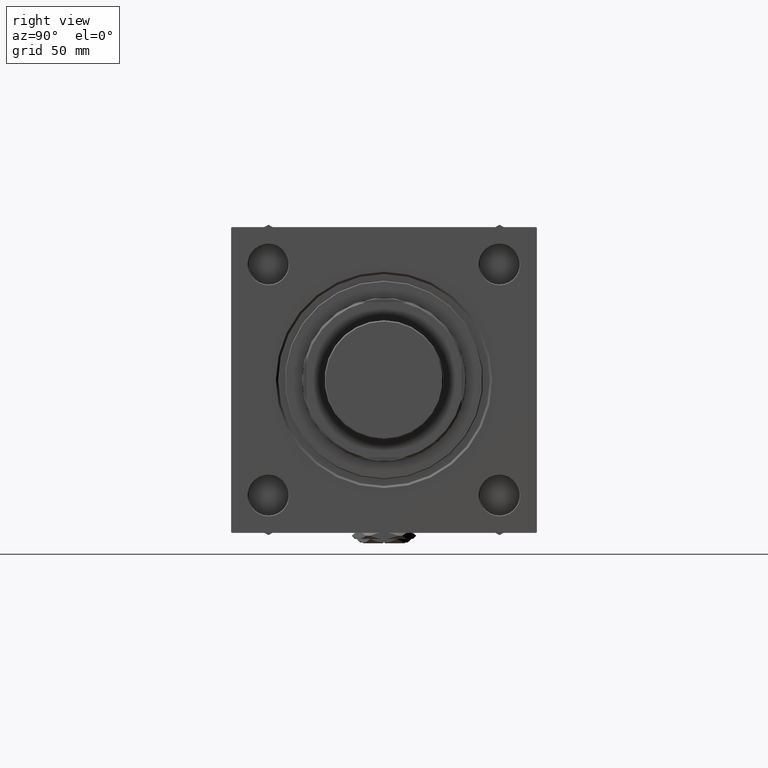
[diagram: clean part render]
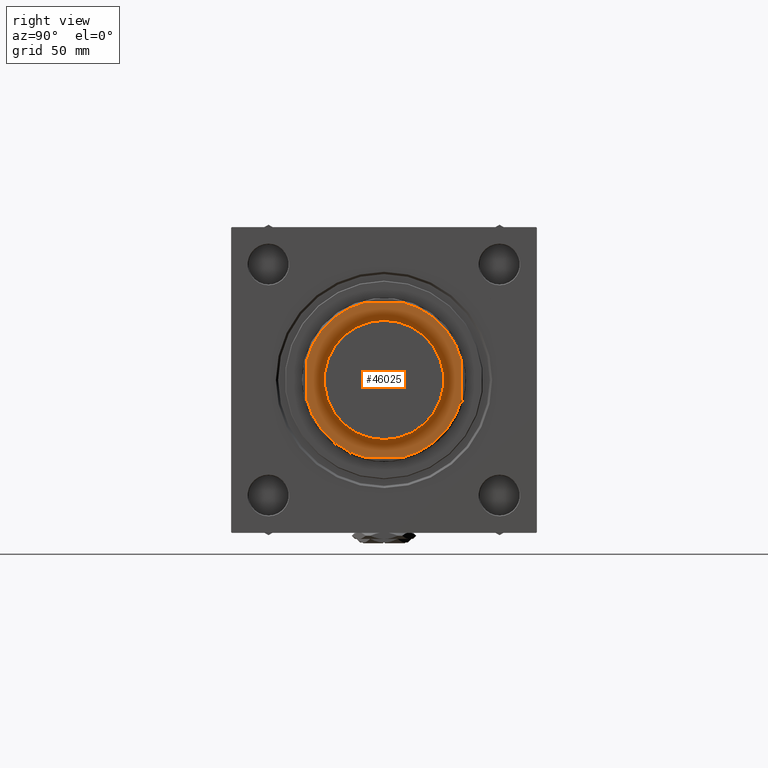
[diagram: same view with one face highlighted and labeled with its STEP entity id]
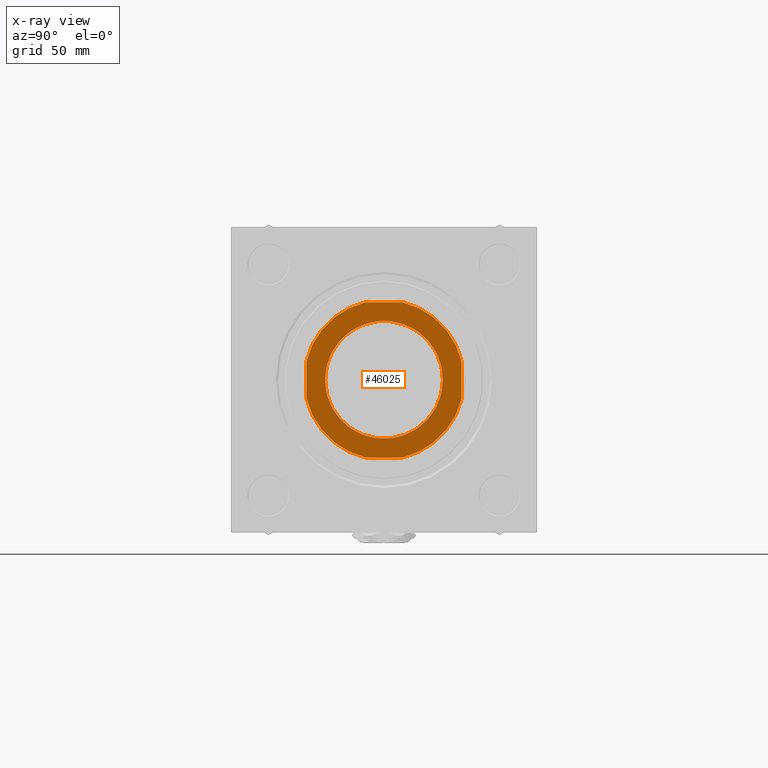
[diagram: x-ray of the same camera — body ghosted, the highlighted face saturated]
A machine part, right view. The second image highlights one B-rep face of the part: STEP entity #46025.
The next image is the same camera in x-ray: the body ghosted, the highlighted face saturated — about 3% of this face is hidden behind the body in this view.
In plain terms, the highlighted planar face has unit normal (1, 0, 0).
Its self-contained STEP definition (entity closure, byte-faithful):
#2100 = VERTEX_POINT ( 'NONE', #16071 ) ;
#2308 = AXIS2_PLACEMENT_3D ( 'NONE', #19683, #41161, #40353 ) ;
#2430 = FACE_BOUND ( 'NONE', #12267, .T. ) ;
#2502 = VERTEX_POINT ( 'NONE', #24813 ) ;
#3173 = EDGE_CURVE ( 'NONE', #2502, #44145, #48054, .T. ) ;
#3453 = DIRECTION ( 'NONE',  ( -0.000000000000000000, 0.000000000000000000, 1.000000000000000000 ) ) ;
#4022 = ORIENTED_EDGE ( 'NONE', *, *, #3173, .T. ) ;
#4897 = EDGE_CURVE ( 'NONE', #8964, #2502, #34093, .T. ) ;
#7614 = DIRECTION ( 'NONE',  ( -0.000000000000000000, 1.000000000000000000, -0.000000000000000000 ) ) ;
#8001 = DIRECTION ( 'NONE',  ( 1.000000000000000000, 0.000000000000000000, 0.000000000000000000 ) ) ;
#8099 = CARTESIAN_POINT ( 'NONE',  ( 0.000000000000000000, 0.000000000000000000, 205.0000000000000000 ) ) ;
#8220 = EDGE_CURVE ( 'NONE', #22317, #10214, #39679, .T. ) ;
#8964 = VERTEX_POINT ( 'NONE', #10481 ) ;
#9874 = LINE ( 'NONE', #34236, #36092 ) ;
#10057 = CIRCLE ( 'NONE', #39994, 53.49999999999991473 ) ;
#10214 = VERTEX_POINT ( 'NONE', #42863 ) ;
#10481 = CARTESIAN_POINT ( 'NONE',  ( 12.57974562540872832, 52.00000000000001421, 205.0000000000000000 ) ) ;
#11234 = ORIENTED_EDGE ( 'NONE', *, *, #31608, .T. ) ;
#11484 = CARTESIAN_POINT ( 'NONE',  ( 0.000000000000000000, 0.000000000000000000, 205.0000000000000000 ) ) ;
#12267 = EDGE_LOOP ( 'NONE', ( #19461, #20899 ) ) ;
#12417 = CARTESIAN_POINT ( 'NONE',  ( 39.54999999999997584, 0.000000000000000000, 205.0000000000000000 ) ) ;
#12799 = AXIS2_PLACEMENT_3D ( 'NONE', #25163, #37247, #17662 ) ;
#13941 = FACE_OUTER_BOUND ( 'NONE', #31129, .T. ) ;
#14020 = DIRECTION ( 'NONE',  ( -0.000000000000000000, 0.000000000000000000, 1.000000000000000000 ) ) ;
#14344 = ORIENTED_EDGE ( 'NONE', *, *, #50440, .T. ) ;
#14507 = CARTESIAN_POINT ( 'NONE',  ( -51.99999999999998579, -12.57974562540868213, 205.0000000000000000 ) ) ;
#14565 = CARTESIAN_POINT ( 'NONE',  ( -12.57974562540865904, -51.99999999999999289, 205.0000000000000000 ) ) ;
#15340 = CARTESIAN_POINT ( 'NONE',  ( -51.99999999999997868, -51.99999999999999289, 205.0000000000000000 ) ) ;
#15564 = EDGE_CURVE ( 'NONE', #29242, #30670, #43756, .T. ) ;
#16071 = CARTESIAN_POINT ( 'NONE',  ( 52.00000000000001421, -12.57974562540856844, 205.0000000000000000 ) ) ;
#17662 = DIRECTION ( 'NONE',  ( 1.000000000000000000, 0.000000000000000000, 0.000000000000000000 ) ) ;
#17904 = VERTEX_POINT ( 'NONE', #20924 ) ;
#17940 = ORIENTED_EDGE ( 'NONE', *, *, #30253, .T. ) ;
#17973 = AXIS2_PLACEMENT_3D ( 'NONE', #25980, #51712, #38589 ) ;
#19461 = ORIENTED_EDGE ( 'NONE', *, *, #8220, .T. ) ;
#19683 = CARTESIAN_POINT ( 'NONE',  ( 0.000000000000000000, 0.000000000000000000, 205.0000000000000000 ) ) ;
#20899 = ORIENTED_EDGE ( 'NONE', *, *, #36567, .T. ) ;
#20924 = CARTESIAN_POINT ( 'NONE',  ( 52.00000000000001421, 12.57974562540872654, 205.0000000000000000 ) ) ;
#22268 = CARTESIAN_POINT ( 'NONE',  ( -51.99999999999999289, 52.00000000000001421, 205.0000000000000000 ) ) ;
#22317 = VERTEX_POINT ( 'NONE', #12417 ) ;
#23212 = CIRCLE ( 'NONE', #48933, 53.49999999999987921 ) ;
#23698 = VECTOR ( 'NONE', #7614, 1000.000000000000000 ) ;
#24813 = CARTESIAN_POINT ( 'NONE',  ( -12.57974562540890062, 52.00000000000001421, 205.0000000000000000 ) ) ;
#25163 = CARTESIAN_POINT ( 'NONE',  ( 0.000000000000000000, 0.000000000000000000, 205.0000000000000000 ) ) ;
#25525 = DIRECTION ( 'NONE',  ( 1.000000000000000000, 0.000000000000000000, 0.000000000000000000 ) ) ;
#25980 = CARTESIAN_POINT ( 'NONE',  ( 0.000000000000000000, 0.000000000000000000, 205.0000000000000000 ) ) ;
#26659 = VECTOR ( 'NONE', #50457, 1000.000000000000000 ) ;
#28199 = CIRCLE ( 'NONE', #12799, 39.54999999999997584 ) ;
#29242 = VERTEX_POINT ( 'NONE', #14565 ) ;
#30253 = EDGE_CURVE ( 'NONE', #37321, #29242, #32223, .T. ) ;
#30670 = VERTEX_POINT ( 'NONE', #49407 ) ;
#30799 = PLANE ( 'NONE',  #17973 ) ;
#31129 = EDGE_LOOP ( 'NONE', ( #11234, #43806, #48157, #4022, #14344, #17940, #50831, #49038 ) ) ;
#31608 = EDGE_CURVE ( 'NONE', #2100, #17904, #36818, .T. ) ;
#31922 = DIRECTION ( 'NONE',  ( 1.000000000000000000, 0.000000000000000000, 0.000000000000000000 ) ) ;
#31991 = EDGE_CURVE ( 'NONE', #17904, #8964, #10057, .T. ) ;
#32223 = CIRCLE ( 'NONE', #2308, 53.49999999999987921 ) ;
#34093 = LINE ( 'NONE', #22268, #26659 ) ;
#34236 = CARTESIAN_POINT ( 'NONE',  ( -51.99999999999999289, 52.00000000000001421, 205.0000000000000000 ) ) ;
#34549 = AXIS2_PLACEMENT_3D ( 'NONE', #36384, #43899, #52464 ) ;
#36038 = AXIS2_PLACEMENT_3D ( 'NONE', #11484, #3453, #8001 ) ;
#36092 = VECTOR ( 'NONE', #50598, 1000.000000000000000 ) ;
#36384 = CARTESIAN_POINT ( 'NONE',  ( 0.000000000000000000, 0.000000000000000000, 205.0000000000000000 ) ) ;
#36567 = EDGE_CURVE ( 'NONE', #10214, #22317, #28199, .T. ) ;
#36818 = LINE ( 'NONE', #44328, #23698 ) ;
#37247 = DIRECTION ( 'NONE',  ( 0.000000000000000000, -0.000000000000000000, -1.000000000000000000 ) ) ;
#37321 = VERTEX_POINT ( 'NONE', #14507 ) ;
#38589 = DIRECTION ( 'NONE',  ( 1.000000000000000000, 0.000000000000000000, 0.000000000000000000 ) ) ;
#38706 = VECTOR ( 'NONE', #39209, 1000.000000000000000 ) ;
#39209 = DIRECTION ( 'NONE',  ( 1.000000000000000000, 0.000000000000000000, 0.000000000000000000 ) ) ;
#39679 = CIRCLE ( 'NONE', #34549, 39.54999999999997584 ) ;
#39994 = AXIS2_PLACEMENT_3D ( 'NONE', #8099, #52297, #31922 ) ;
#40039 = CARTESIAN_POINT ( 'NONE',  ( -51.99999999999998579, 12.57974562540899832, 205.0000000000000000 ) ) ;
#40353 = DIRECTION ( 'NONE',  ( 1.000000000000000000, 0.000000000000000000, 0.000000000000000000 ) ) ;
#41161 = DIRECTION ( 'NONE',  ( -0.000000000000000000, 0.000000000000000000, 1.000000000000000000 ) ) ;
#42863 = CARTESIAN_POINT ( 'NONE',  ( -39.54999999999997584, 4.843478090627778580E-15, 205.0000000000000000 ) ) ;
#43756 = LINE ( 'NONE', #15340, #38706 ) ;
#43806 = ORIENTED_EDGE ( 'NONE', *, *, #31991, .T. ) ;
#43899 = DIRECTION ( 'NONE',  ( 0.000000000000000000, -0.000000000000000000, -1.000000000000000000 ) ) ;
#44145 = VERTEX_POINT ( 'NONE', #40039 ) ;
#44328 = CARTESIAN_POINT ( 'NONE',  ( 52.00000000000001421, 52.00000000000001421, 205.0000000000000000 ) ) ;
#46025 = ADVANCED_FACE ( 'NONE', ( #2430, #13941 ), #30799, .T. ) ;
#46718 = CARTESIAN_POINT ( 'NONE',  ( 0.000000000000000000, 0.000000000000000000, 205.0000000000000000 ) ) ;
#48054 = CIRCLE ( 'NONE', #36038, 53.49999999999995737 ) ;
#48157 = ORIENTED_EDGE ( 'NONE', *, *, #4897, .T. ) ;
#48933 = AXIS2_PLACEMENT_3D ( 'NONE', #46718, #14020, #25525 ) ;
#49038 = ORIENTED_EDGE ( 'NONE', *, *, #49224, .T. ) ;
#49224 = EDGE_CURVE ( 'NONE', #30670, #2100, #23212, .T. ) ;
#49407 = CARTESIAN_POINT ( 'NONE',  ( 12.57974562540865726, -51.99999999999999289, 205.0000000000000000 ) ) ;
#50440 = EDGE_CURVE ( 'NONE', #44145, #37321, #9874, .T. ) ;
#50457 = DIRECTION ( 'NONE',  ( -1.000000000000000000, -0.000000000000000000, -0.000000000000000000 ) ) ;
#50598 = DIRECTION ( 'NONE',  ( 1.334402673828313093E-16, -1.000000000000000000, 0.000000000000000000 ) ) ;
#50831 = ORIENTED_EDGE ( 'NONE', *, *, #15564, .T. ) ;
#51712 = DIRECTION ( 'NONE',  ( -0.000000000000000000, 0.000000000000000000, 1.000000000000000000 ) ) ;
#52297 = DIRECTION ( 'NONE',  ( -0.000000000000000000, 0.000000000000000000, 1.000000000000000000 ) ) ;
#52464 = DIRECTION ( 'NONE',  ( 1.000000000000000000, 0.000000000000000000, 0.000000000000000000 ) ) ;